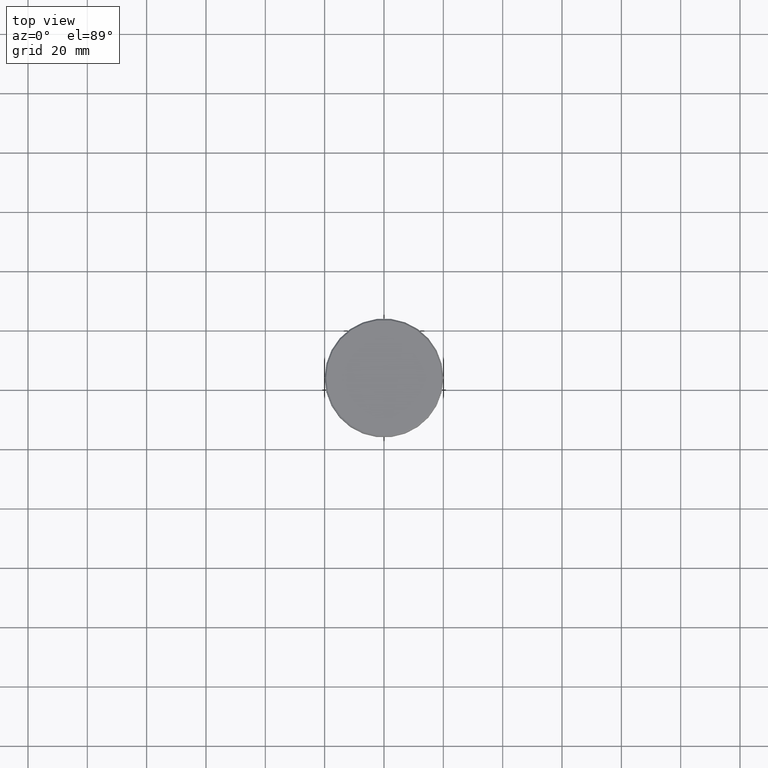
[diagram: clean part render]
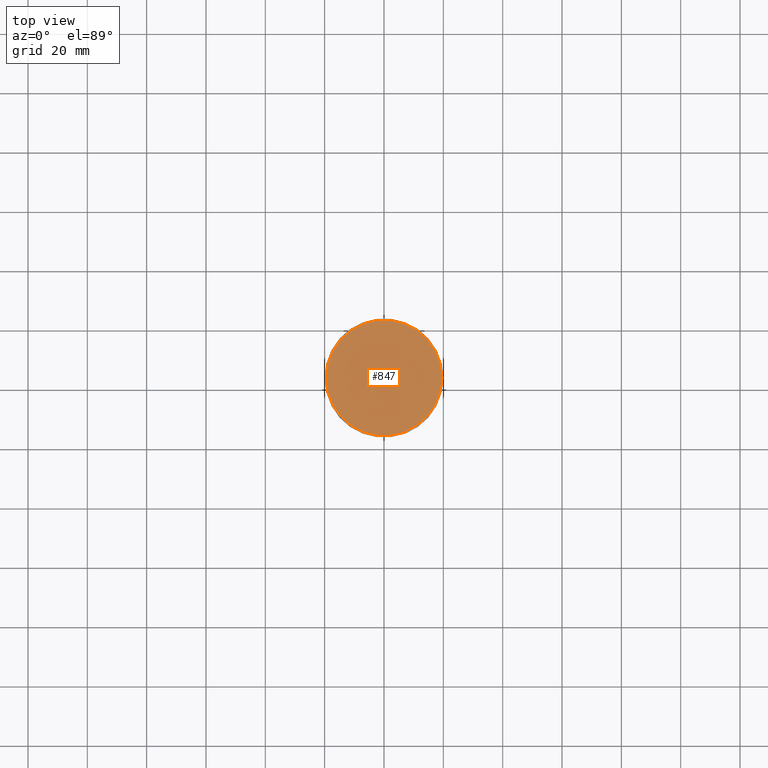
[diagram: same view with one face highlighted and labeled with its STEP entity id]
A machine part, top view. The second image highlights one B-rep face of the part: STEP entity #847.
In plain terms, the highlighted planar face has unit normal (0, -0, 1).
Its self-contained STEP definition (entity closure, byte-faithful):
#41 = CARTESIAN_POINT ( 'NONE',  ( -19.50000000000001776, 0.000000000000000000, 0.000000000000000000 ) ) ;
#73 = DIRECTION ( 'NONE',  ( -0.000000000000000000, -0.000000000000000000, 1.000000000000000000 ) ) ;
#158 = PLANE ( 'NONE',  #212 ) ;
#163 = CIRCLE ( 'NONE', #288, 19.50000000000001776 ) ;
#175 = ORIENTED_EDGE ( 'NONE', *, *, #266, .T. ) ;
#212 = AXIS2_PLACEMENT_3D ( 'NONE', #1167, #437, #1152 ) ;
#250 = VERTEX_POINT ( 'NONE', #610 ) ;
#266 = EDGE_CURVE ( 'NONE', #454, #250, #270, .T. ) ;
#270 = CIRCLE ( 'NONE', #932, 19.50000000000001776 ) ;
#288 = AXIS2_PLACEMENT_3D ( 'NONE', #1080, #73, #894 ) ;
#328 = FACE_OUTER_BOUND ( 'NONE', #643, .T. ) ;
#437 = DIRECTION ( 'NONE',  ( 0.000000000000000000, -0.000000000000000000, 1.000000000000000000 ) ) ;
#454 = VERTEX_POINT ( 'NONE', #41 ) ;
#583 = ORIENTED_EDGE ( 'NONE', *, *, #668, .T. ) ;
#610 = CARTESIAN_POINT ( 'NONE',  ( 19.50000000000001776, 2.418677428316023515E-15, 0.000000000000000000 ) ) ;
#643 = EDGE_LOOP ( 'NONE', ( #175, #583 ) ) ;
#668 = EDGE_CURVE ( 'NONE', #250, #454, #163, .T. ) ;
#701 = CARTESIAN_POINT ( 'NONE',  ( 0.000000000000000000, 0.000000000000000000, 0.000000000000000000 ) ) ;
#797 = DIRECTION ( 'NONE',  ( 1.000000000000000000, 0.000000000000000000, 0.000000000000000000 ) ) ;
#847 = ADVANCED_FACE ( 'NONE', ( #328 ), #158, .T. ) ;
#888 = DIRECTION ( 'NONE',  ( -0.000000000000000000, -0.000000000000000000, 1.000000000000000000 ) ) ;
#894 = DIRECTION ( 'NONE',  ( 1.000000000000000000, 0.000000000000000000, 0.000000000000000000 ) ) ;
#932 = AXIS2_PLACEMENT_3D ( 'NONE', #701, #888, #797 ) ;
#1080 = CARTESIAN_POINT ( 'NONE',  ( 0.000000000000000000, 0.000000000000000000, 0.000000000000000000 ) ) ;
#1152 = DIRECTION ( 'NONE',  ( 1.000000000000000000, 0.000000000000000000, 0.000000000000000000 ) ) ;
#1167 = CARTESIAN_POINT ( 'NONE',  ( 0.000000000000000000, 0.000000000000000000, 0.000000000000000000 ) ) ;